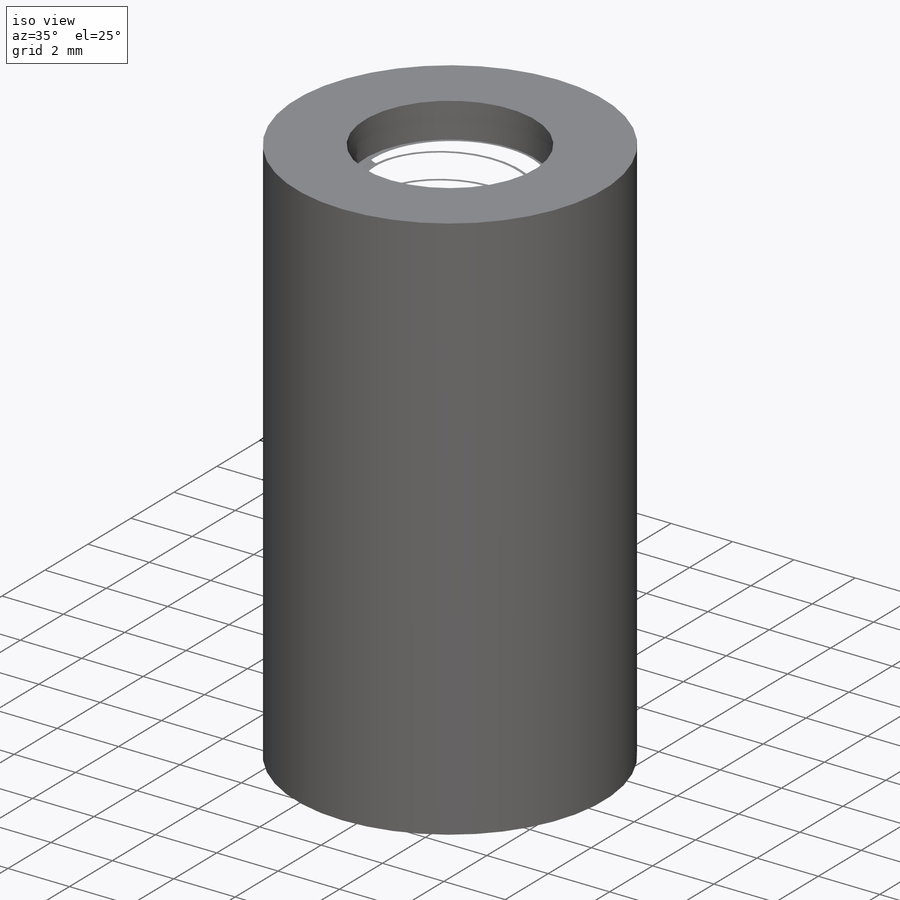
[diagram: iso view]
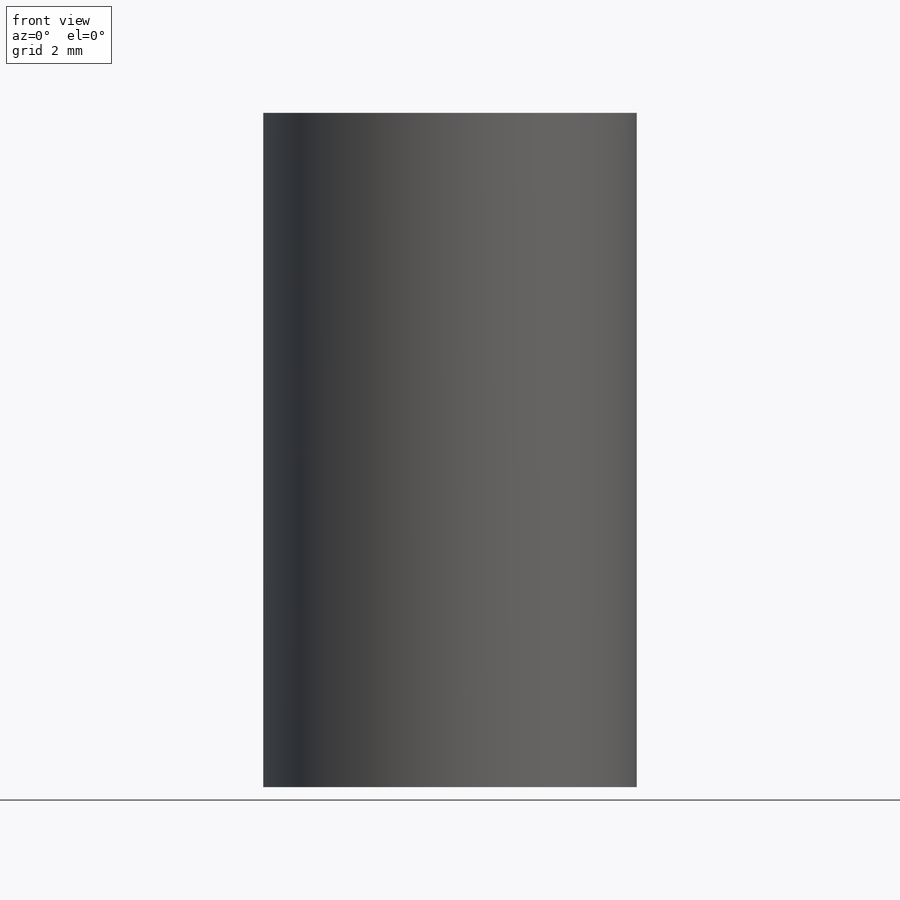
[diagram: front view]
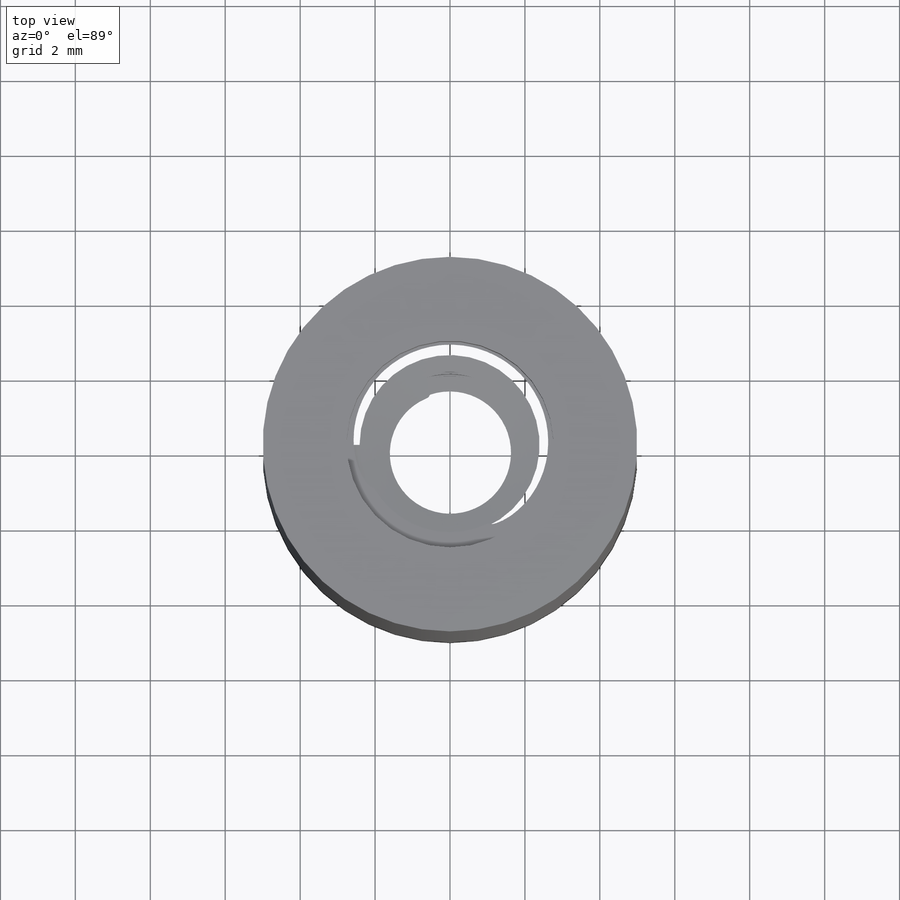
[diagram: top view]
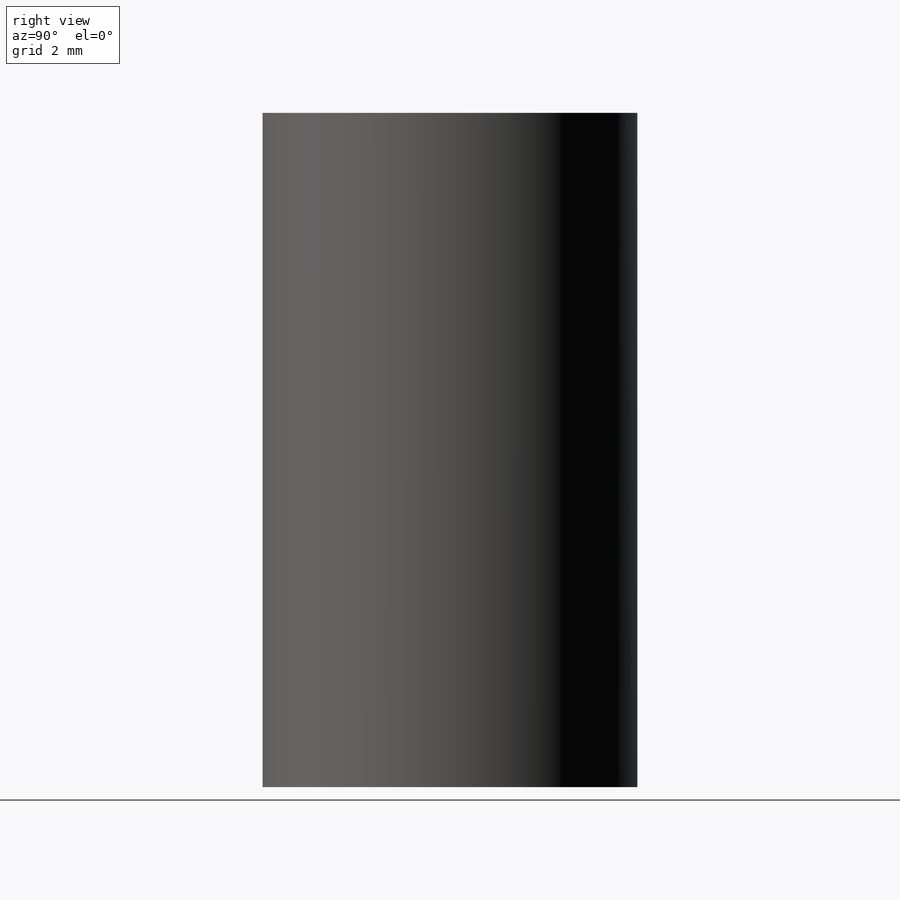
[diagram: right view]
SOLIDWORKS PART (.sldprt)
format: sldprt  version: not decoded by parser v0  size: 2,775,552 bytes
history: native  units: mm
features: sketch x8, cut_extrude x3, plane x2, helix x2, sweep x2, material x1, extrude x1, fillet x1 (+11 scaffold rows collapsed)
feature tree (31):
  scaffold x11  (default folders/planes/origin — collapsed)
  material  "Material <not specified>"
  sketch  "Sketch1"  dims[D1=10.0mm]
  extrude  "Boss-Extrude1"  Depth=18mm
  plane  "Plane1"  Offset=0.9mm
  sketch  "Sketch4"  dims[D1=4.8mm]
  helix  "Helix/Spiral1"  Pitch=13.6mm
  sketch  "Sketch5"  dims[c1.D1=0.6mm c1.D2=~0.433018mm c2.D2=5.0deg c2.D3=~0.367097mm c3.D3=5.0deg]
  sweep  "Cut-Sweep1"
  sketch  "Sketch6"  dims[D1=4.8mm]
  helix  "Helix/Spiral2"  Pitch=2mm
  sketch  "Sketch7"
  sweep  "Cut-Sweep2"
  sketch  "Sketch8"  dims[D1=5.52mm]
  cut_extrude  "Cut-Extrude1"  Depth=1.14mm
  sketch  "Sketch9"  dims[D1=4.53mm]
  cut_extrude  "Cut-Extrude2"  Depth=13.94mm
  plane  "Plane2"  Offset=15.08mm
  sketch  "Sketch10"  dims[D1=3.86mm]
  cut_extrude  "Cut-Extrude3"  Depth=0.92mm
  fillet  "Fillet1"  Radius=0.07mm
decode coverage: 14 of 17 modeling features carry decoded parameters
note: ~ marks probable driven/reference dimensions
note: suppression state not decoded; provenance and decode notes live in map.json
